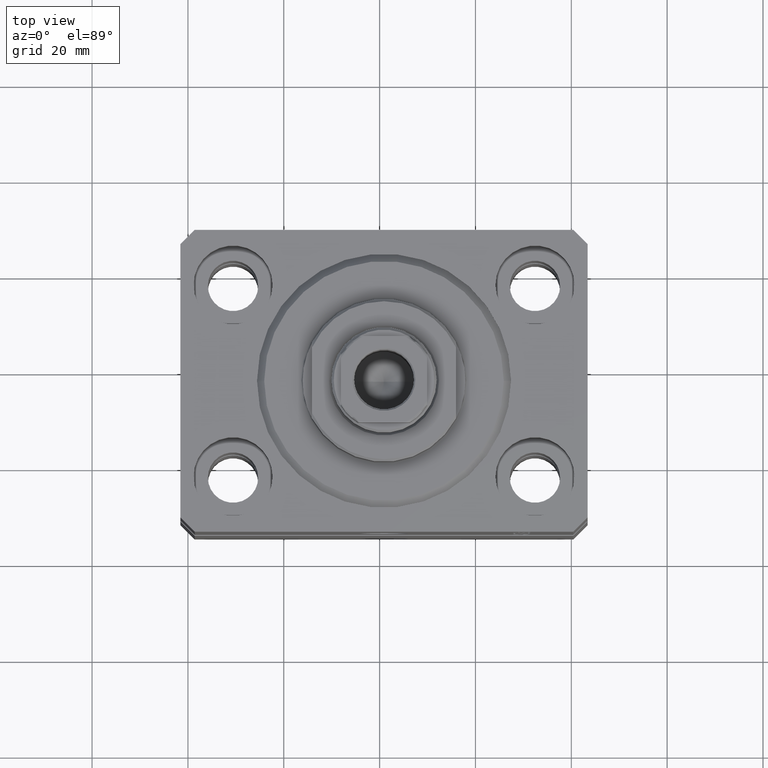
[diagram: clean part render]
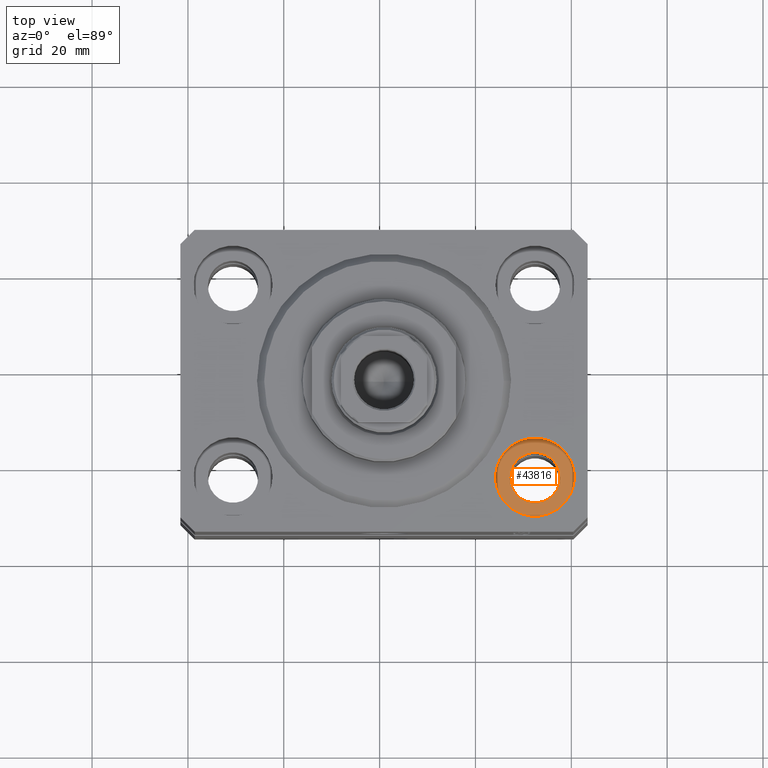
[diagram: same view with one face highlighted and labeled with its STEP entity id]
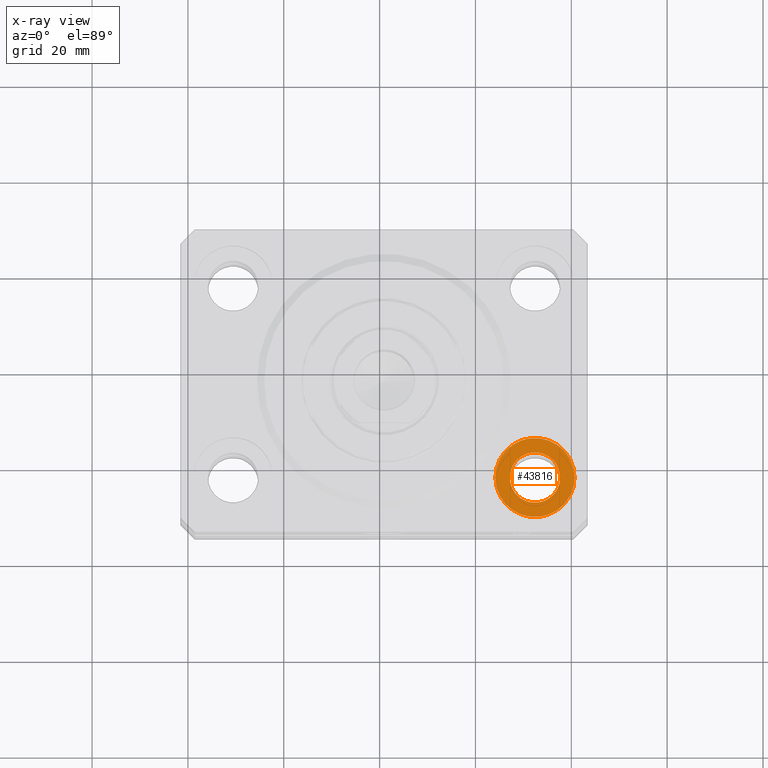
[diagram: x-ray of the same camera — body ghosted, the highlighted face saturated]
A machine part, top view. The second image highlights one B-rep face of the part: STEP entity #43816.
The next image is the same camera in x-ray: the body ghosted, the highlighted face saturated — about 0% of this face is hidden behind the body in this view.
In plain terms, the highlighted planar face has unit normal (0, 0, 1).
Its self-contained STEP definition (entity closure, byte-faithful):
#1091 = DIRECTION ( 'NONE',  ( 0.000000000000000000, 0.000000000000000000, 1.000000000000000000 ) ) ;
#1291 = EDGE_CURVE ( 'NONE', #25973, #5490, #17626, .T. ) ;
#1554 = DIRECTION ( 'NONE',  ( 0.000000000000000000, 0.000000000000000000, 1.000000000000000000 ) ) ;
#1760 = FACE_BOUND ( 'NONE', #32035, .T. ) ;
#3127 = CARTESIAN_POINT ( 'NONE',  ( 31.50000000000000000, -20.00000000000000000, -11.00000000000000000 ) ) ;
#5490 = VERTEX_POINT ( 'NONE', #28098 ) ;
#7662 = AXIS2_PLACEMENT_3D ( 'NONE', #15836, #16894, #12419 ) ;
#7922 = EDGE_CURVE ( 'NONE', #38356, #28829, #27191, .T. ) ;
#8118 = PLANE ( 'NONE',  #22237 ) ;
#8574 = CARTESIAN_POINT ( 'NONE',  ( 31.50000000000000000, -20.00000000000000000, -11.00000000000000000 ) ) ;
#9288 = DIRECTION ( 'NONE',  ( 0.000000000000000000, 0.000000000000000000, 1.000000000000000000 ) ) ;
#11914 = CARTESIAN_POINT ( 'NONE',  ( 39.74999999999999289, -20.00000000000000000, -11.00000000000000000 ) ) ;
#12419 = DIRECTION ( 'NONE',  ( 1.000000000000000000, 0.000000000000000000, 0.000000000000000000 ) ) ;
#12684 = CARTESIAN_POINT ( 'NONE',  ( 31.50000000000000000, -20.00000000000000000, -11.00000000000000000 ) ) ;
#15377 = DIRECTION ( 'NONE',  ( 1.000000000000000000, 0.000000000000000000, -0.000000000000000000 ) ) ;
#15836 = CARTESIAN_POINT ( 'NONE',  ( 31.50000000000000000, -20.00000000000000000, -11.00000000000000000 ) ) ;
#16175 = AXIS2_PLACEMENT_3D ( 'NONE', #43265, #1554, #22178 ) ;
#16526 = CARTESIAN_POINT ( 'NONE',  ( 26.25000000000000355, -20.00000000000000000, -11.00000000000000000 ) ) ;
#16894 = DIRECTION ( 'NONE',  ( 0.000000000000000000, 0.000000000000000000, 1.000000000000000000 ) ) ;
#17406 = DIRECTION ( 'NONE',  ( 1.000000000000000000, 0.000000000000000000, 0.000000000000000000 ) ) ;
#17445 = CARTESIAN_POINT ( 'NONE',  ( 23.25000000000000355, -20.00000000000000000, -11.00000000000000000 ) ) ;
#17626 = CIRCLE ( 'NONE', #16175, 5.249999999999997335 ) ;
#18255 = EDGE_CURVE ( 'NONE', #5490, #25973, #30558, .T. ) ;
#18684 = ORIENTED_EDGE ( 'NONE', *, *, #7922, .T. ) ;
#19416 = AXIS2_PLACEMENT_3D ( 'NONE', #3127, #30790, #17406 ) ;
#21864 = EDGE_LOOP ( 'NONE', ( #18684, #27949 ) ) ;
#22178 = DIRECTION ( 'NONE',  ( 1.000000000000000000, 0.000000000000000000, 0.000000000000000000 ) ) ;
#22237 = AXIS2_PLACEMENT_3D ( 'NONE', #8574, #1091, #15377 ) ;
#23099 = DIRECTION ( 'NONE',  ( 1.000000000000000000, 0.000000000000000000, 0.000000000000000000 ) ) ;
#23349 = ORIENTED_EDGE ( 'NONE', *, *, #18255, .F. ) ;
#25786 = FACE_OUTER_BOUND ( 'NONE', #21864, .T. ) ;
#25973 = VERTEX_POINT ( 'NONE', #16526 ) ;
#27191 = CIRCLE ( 'NONE', #7662, 8.249999999999992895 ) ;
#27949 = ORIENTED_EDGE ( 'NONE', *, *, #42333, .T. ) ;
#28098 = CARTESIAN_POINT ( 'NONE',  ( 36.75000000000000000, -20.00000000000000000, -11.00000000000000000 ) ) ;
#28829 = VERTEX_POINT ( 'NONE', #17445 ) ;
#30558 = CIRCLE ( 'NONE', #43575, 5.249999999999997335 ) ;
#30790 = DIRECTION ( 'NONE',  ( 0.000000000000000000, 0.000000000000000000, 1.000000000000000000 ) ) ;
#31014 = CIRCLE ( 'NONE', #19416, 8.249999999999992895 ) ;
#32035 = EDGE_LOOP ( 'NONE', ( #23349, #32303 ) ) ;
#32303 = ORIENTED_EDGE ( 'NONE', *, *, #1291, .F. ) ;
#38356 = VERTEX_POINT ( 'NONE', #11914 ) ;
#42333 = EDGE_CURVE ( 'NONE', #28829, #38356, #31014, .T. ) ;
#43265 = CARTESIAN_POINT ( 'NONE',  ( 31.50000000000000000, -20.00000000000000000, -11.00000000000000000 ) ) ;
#43575 = AXIS2_PLACEMENT_3D ( 'NONE', #12684, #9288, #23099 ) ;
#43816 = ADVANCED_FACE ( 'NONE', ( #1760, #25786 ), #8118, .T. ) ;